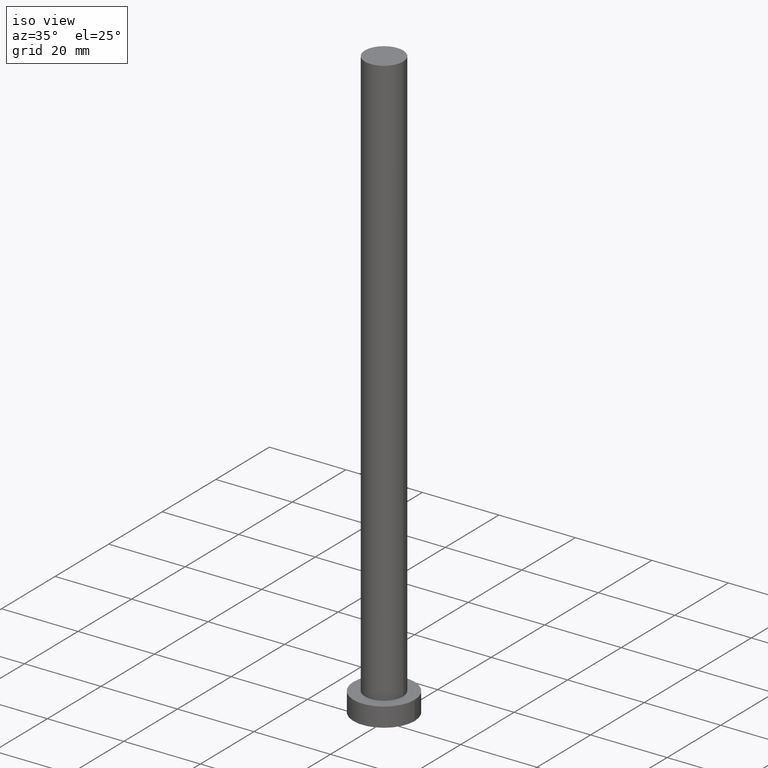
[diagram: clean part render]
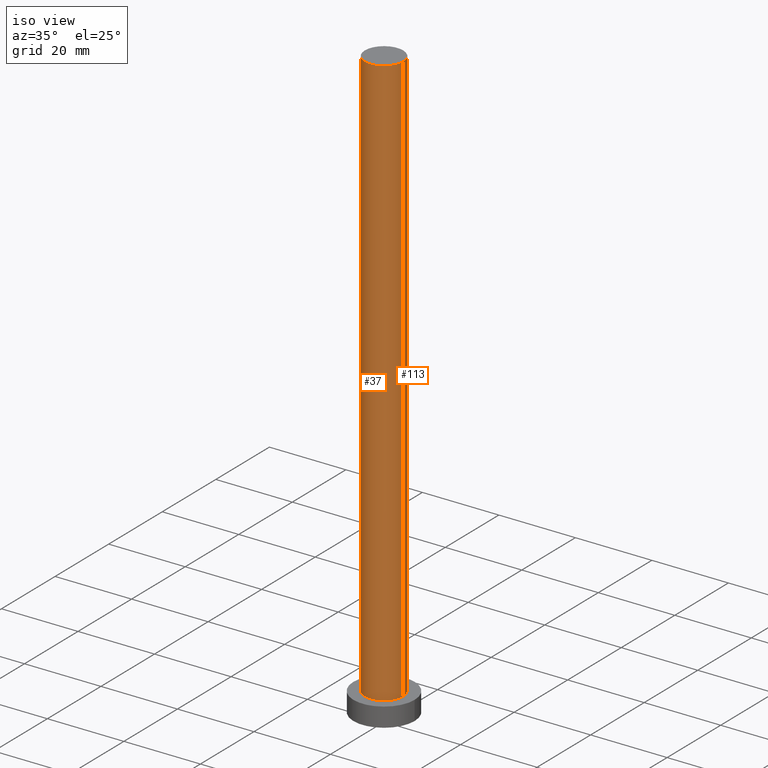
[diagram: same view with one multi-face feature highlighted, each face labeled with its STEP entity id]
A machine part, iso view. The highlighted faces form ONE feature: a constant-radius fillet chain: 2 tangent blend faces with common blend radius 5 mm. The faces share edges in the B-rep.
Their STEP definitions:
[1] entity #37 (Cylinder):
#2 = VERTEX_POINT ( 'NONE', #18 ) ;
#4 = DIRECTION ( 'NONE',  ( 1.000000000000000000, 0.000000000000000000, 0.000000000000000000 ) ) ;
#14 = CARTESIAN_POINT ( 'NONE',  ( 5.000000000000000888, 6.123233995736767268E-16, 155.0000000000000000 ) ) ;
#16 = VERTEX_POINT ( 'NONE', #161 ) ;
#18 = CARTESIAN_POINT ( 'NONE',  ( -5.000000000000000888, 0.000000000000000000, 5.000000000000000000 ) ) ;
#20 = CARTESIAN_POINT ( 'NONE',  ( -5.000000000000000888, 0.000000000000000000, 155.0000000000000000 ) ) ;
#21 = VECTOR ( 'NONE', #167, 1000.000000000000000 ) ;
#23 = EDGE_CURVE ( 'NONE', #235, #143, #218, .T. ) ;
#26 = CARTESIAN_POINT ( 'NONE',  ( 5.000000000000000888, 6.123233995736767268E-16, 5.000000000000000000 ) ) ;
#33 = EDGE_CURVE ( 'NONE', #16, #235, #182, .T. ) ;
#36 = CARTESIAN_POINT ( 'NONE',  ( 0.000000000000000000, 0.000000000000000000, 155.0000000000000000 ) ) ;
#37 = ADVANCED_FACE ( 'NONE', ( #101 ), #176, .T. ) ;
#40 = ORIENTED_EDGE ( 'NONE', *, *, #92, .T. ) ;
#42 = ORIENTED_EDGE ( 'NONE', *, *, #254, .T. ) ;
#60 = LINE ( 'NONE', #20, #21 ) ;
#80 = AXIS2_PLACEMENT_3D ( 'NONE', #239, #199, #86 ) ;
#86 = DIRECTION ( 'NONE',  ( 1.000000000000000000, 0.000000000000000000, 0.000000000000000000 ) ) ;
#89 = DIRECTION ( 'NONE',  ( -0.000000000000000000, -0.000000000000000000, -1.000000000000000000 ) ) ;
#90 = AXIS2_PLACEMENT_3D ( 'NONE', #36, #240, #159 ) ;
#92 = EDGE_CURVE ( 'NONE', #16, #2, #60, .T. ) ;
#100 = AXIS2_PLACEMENT_3D ( 'NONE', #109, #166, #4 ) ;
#101 = FACE_OUTER_BOUND ( 'NONE', #231, .T. ) ;
#102 = ORIENTED_EDGE ( 'NONE', *, *, #33, .F. ) ;
#109 = CARTESIAN_POINT ( 'NONE',  ( 0.000000000000000000, 0.000000000000000000, 5.000000000000000000 ) ) ;
#128 = CIRCLE ( 'NONE', #100, 5.000000000000000888 ) ;
#143 = VERTEX_POINT ( 'NONE', #26 ) ;
#159 = DIRECTION ( 'NONE',  ( -1.000000000000000000, 0.000000000000000000, 0.000000000000000000 ) ) ;
#161 = CARTESIAN_POINT ( 'NONE',  ( -5.000000000000000888, 0.000000000000000000, 155.0000000000000000 ) ) ;
#166 = DIRECTION ( 'NONE',  ( 0.000000000000000000, 0.000000000000000000, 1.000000000000000000 ) ) ;
#167 = DIRECTION ( 'NONE',  ( -0.000000000000000000, -0.000000000000000000, -1.000000000000000000 ) ) ;
#176 = CYLINDRICAL_SURFACE ( 'NONE', #90, 5.000000000000000888 ) ;
#182 = CIRCLE ( 'NONE', #80, 5.000000000000000888 ) ;
#185 = CARTESIAN_POINT ( 'NONE',  ( 5.000000000000000888, 6.123233995736767268E-16, 155.0000000000000000 ) ) ;
#199 = DIRECTION ( 'NONE',  ( 0.000000000000000000, 0.000000000000000000, 1.000000000000000000 ) ) ;
#218 = LINE ( 'NONE', #14, #248 ) ;
#221 = ORIENTED_EDGE ( 'NONE', *, *, #23, .F. ) ;
#231 = EDGE_LOOP ( 'NONE', ( #221, #102, #40, #42 ) ) ;
#235 = VERTEX_POINT ( 'NONE', #185 ) ;
#239 = CARTESIAN_POINT ( 'NONE',  ( 0.000000000000000000, 0.000000000000000000, 155.0000000000000000 ) ) ;
#240 = DIRECTION ( 'NONE',  ( -0.000000000000000000, -0.000000000000000000, -1.000000000000000000 ) ) ;
#248 = VECTOR ( 'NONE', #89, 1000.000000000000000 ) ;
#254 = EDGE_CURVE ( 'NONE', #2, #143, #128, .T. ) ;
[2] entity #113 (Cylinder):
#2 = VERTEX_POINT ( 'NONE', #18 ) ;
#8 = CIRCLE ( 'NONE', #148, 5.000000000000000888 ) ;
#10 = EDGE_CURVE ( 'NONE', #235, #16, #43, .T. ) ;
#14 = CARTESIAN_POINT ( 'NONE',  ( 5.000000000000000888, 6.123233995736767268E-16, 155.0000000000000000 ) ) ;
#16 = VERTEX_POINT ( 'NONE', #161 ) ;
#18 = CARTESIAN_POINT ( 'NONE',  ( -5.000000000000000888, 0.000000000000000000, 5.000000000000000000 ) ) ;
#20 = CARTESIAN_POINT ( 'NONE',  ( -5.000000000000000888, 0.000000000000000000, 155.0000000000000000 ) ) ;
#21 = VECTOR ( 'NONE', #167, 1000.000000000000000 ) ;
#23 = EDGE_CURVE ( 'NONE', #235, #143, #218, .T. ) ;
#26 = CARTESIAN_POINT ( 'NONE',  ( 5.000000000000000888, 6.123233995736767268E-16, 5.000000000000000000 ) ) ;
#43 = CIRCLE ( 'NONE', #189, 5.000000000000000888 ) ;
#48 = DIRECTION ( 'NONE',  ( 1.000000000000000000, 0.000000000000000000, 0.000000000000000000 ) ) ;
#60 = LINE ( 'NONE', #20, #21 ) ;
#66 = ORIENTED_EDGE ( 'NONE', *, *, #23, .T. ) ;
#71 = FACE_OUTER_BOUND ( 'NONE', #212, .T. ) ;
#82 = CARTESIAN_POINT ( 'NONE',  ( 0.000000000000000000, 0.000000000000000000, 155.0000000000000000 ) ) ;
#89 = DIRECTION ( 'NONE',  ( -0.000000000000000000, -0.000000000000000000, -1.000000000000000000 ) ) ;
#92 = EDGE_CURVE ( 'NONE', #16, #2, #60, .T. ) ;
#108 = DIRECTION ( 'NONE',  ( -1.000000000000000000, 0.000000000000000000, 0.000000000000000000 ) ) ;
#113 = ADVANCED_FACE ( 'NONE', ( #71 ), #228, .T. ) ;
#124 = AXIS2_PLACEMENT_3D ( 'NONE', #127, #125, #108 ) ;
#125 = DIRECTION ( 'NONE',  ( -0.000000000000000000, -0.000000000000000000, -1.000000000000000000 ) ) ;
#127 = CARTESIAN_POINT ( 'NONE',  ( 0.000000000000000000, 0.000000000000000000, 155.0000000000000000 ) ) ;
#142 = ORIENTED_EDGE ( 'NONE', *, *, #92, .F. ) ;
#143 = VERTEX_POINT ( 'NONE', #26 ) ;
#148 = AXIS2_PLACEMENT_3D ( 'NONE', #165, #149, #48 ) ;
#149 = DIRECTION ( 'NONE',  ( 0.000000000000000000, 0.000000000000000000, 1.000000000000000000 ) ) ;
#158 = DIRECTION ( 'NONE',  ( 0.000000000000000000, 0.000000000000000000, 1.000000000000000000 ) ) ;
#161 = CARTESIAN_POINT ( 'NONE',  ( -5.000000000000000888, 0.000000000000000000, 155.0000000000000000 ) ) ;
#165 = CARTESIAN_POINT ( 'NONE',  ( 0.000000000000000000, 0.000000000000000000, 5.000000000000000000 ) ) ;
#167 = DIRECTION ( 'NONE',  ( -0.000000000000000000, -0.000000000000000000, -1.000000000000000000 ) ) ;
#171 = EDGE_CURVE ( 'NONE', #143, #2, #8, .T. ) ;
#175 = ORIENTED_EDGE ( 'NONE', *, *, #10, .F. ) ;
#178 = DIRECTION ( 'NONE',  ( 1.000000000000000000, 0.000000000000000000, 0.000000000000000000 ) ) ;
#185 = CARTESIAN_POINT ( 'NONE',  ( 5.000000000000000888, 6.123233995736767268E-16, 155.0000000000000000 ) ) ;
#189 = AXIS2_PLACEMENT_3D ( 'NONE', #82, #158, #178 ) ;
#198 = ORIENTED_EDGE ( 'NONE', *, *, #171, .T. ) ;
#212 = EDGE_LOOP ( 'NONE', ( #175, #66, #198, #142 ) ) ;
#218 = LINE ( 'NONE', #14, #248 ) ;
#228 = CYLINDRICAL_SURFACE ( 'NONE', #124, 5.000000000000000888 ) ;
#235 = VERTEX_POINT ( 'NONE', #185 ) ;
#248 = VECTOR ( 'NONE', #89, 1000.000000000000000 ) ;